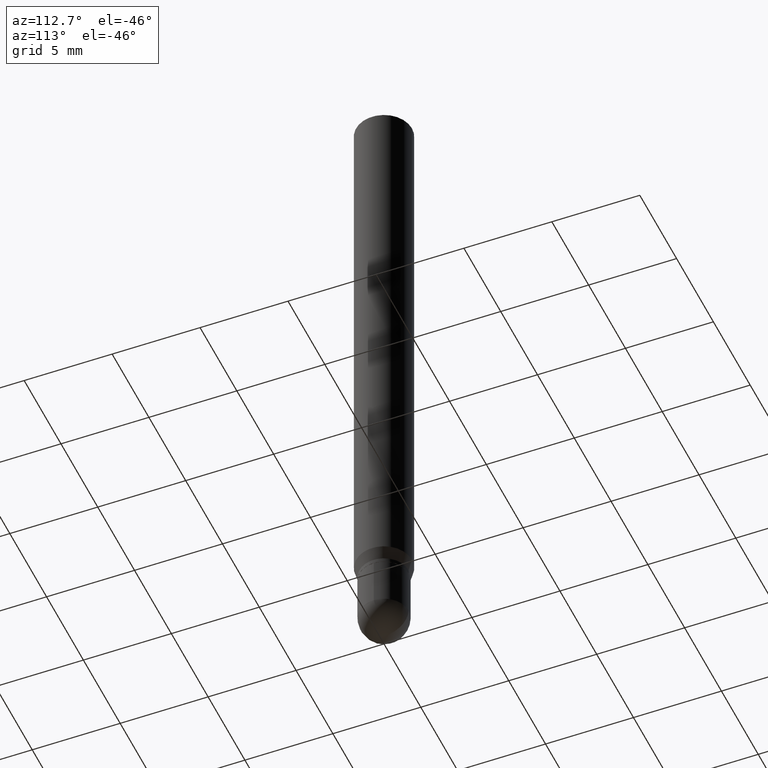
[diagram: clean part render]
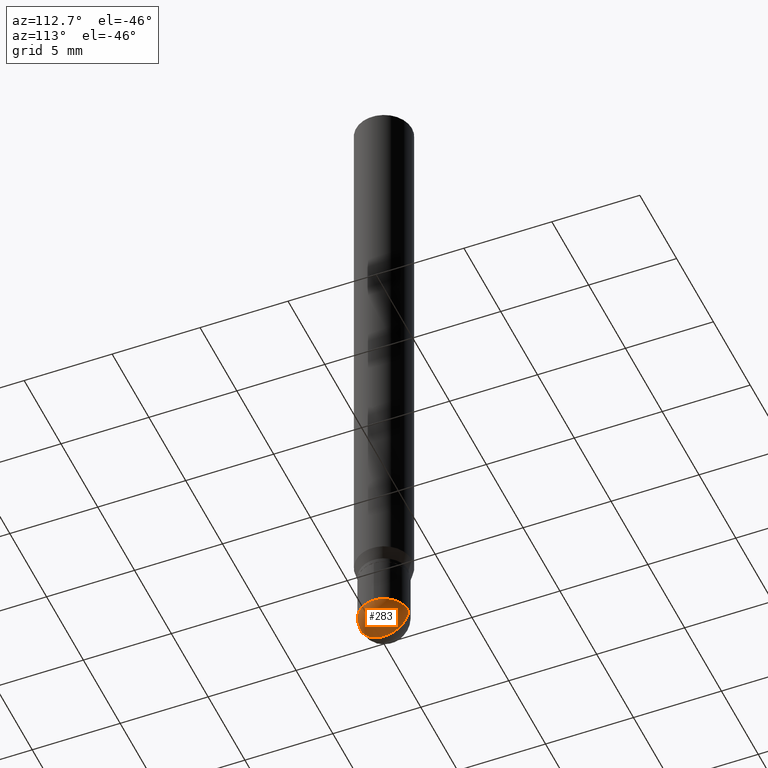
[diagram: same view with one face highlighted and labeled with its STEP entity id]
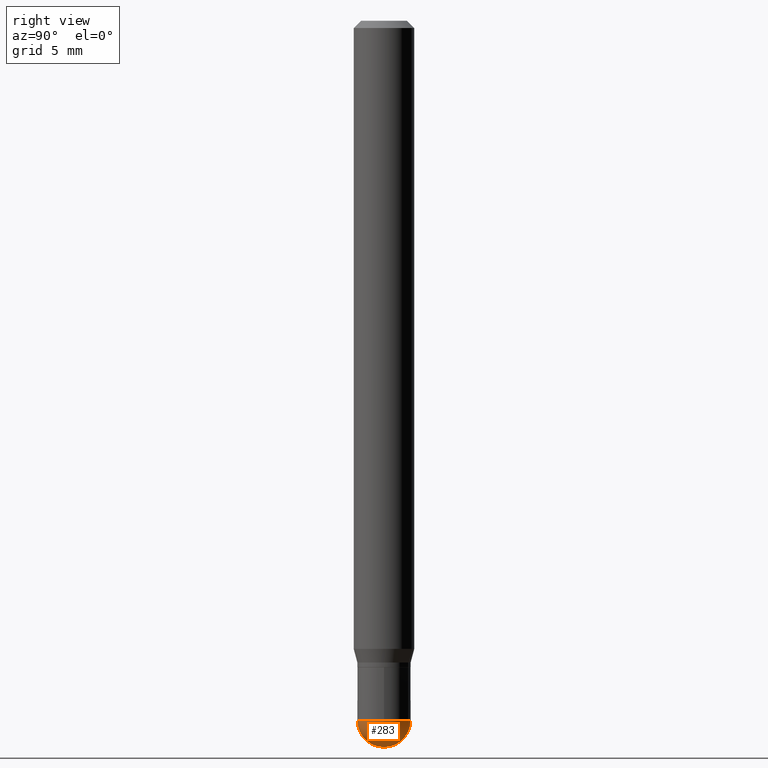
[diagram: same view with one face highlighted and labeled with its STEP entity id]
A machine part, auxiliary view. The second image highlights one B-rep face of the part: STEP entity #283.
A second angle (right view) of the same face is appended — the face is thin or edge-on in the first view.
In plain terms, the highlighted spherical surface has radius 1.397 mm.
Its self-contained STEP definition (entity closure, byte-faithful):
#9 = CARTESIAN_POINT ( 'NONE',  ( -3.840629472727099789E-16, -0.05500000000000514894, -1.444999999999999840 ) ) ;
#12 = CARTESIAN_POINT ( 'NONE',  ( 3.528999010347036160E-29, -5.051926092023656149E-15, -1.445000000000000062 ) ) ;
#26 = VERTEX_POINT ( 'NONE', #121 ) ;
#36 = AXIS2_PLACEMENT_3D ( 'NONE', #149, #349, #393 ) ;
#42 = ORIENTED_EDGE ( 'NONE', *, *, #369, .F. ) ;
#45 = CIRCLE ( 'NONE', #228, 0.05500000000000000028 ) ;
#64 = EDGE_CURVE ( 'NONE', #321, #373, #155, .T. ) ;
#74 = CARTESIAN_POINT ( 'NONE',  ( 3.661148087391975640E-29, -5.247325344357685057E-15, -1.500000000000000222 ) ) ;
#78 = CARTESIAN_POINT ( 'NONE',  ( 3.533702424937522517E-29, -5.045190534628345684E-15, -1.445000000000000062 ) ) ;
#85 = DIRECTION ( 'NONE',  ( -6.982962677686265922E-15, -1.000000000000000000, 4.966996352116824932E-15 ) ) ;
#98 = EDGE_LOOP ( 'NONE', ( #167, #331, #42, #126 ) ) ;
#117 = EDGE_CURVE ( 'NONE', #187, #26, #483, .T. ) ;
#121 = CARTESIAN_POINT ( 'NONE',  ( 3.907985046680910960E-16, 0.05499999999999503897, -1.445000000000000284 ) ) ;
#126 = ORIENTED_EDGE ( 'NONE', *, *, #64, .F. ) ;
#149 = CARTESIAN_POINT ( 'NONE',  ( 3.528999010347036160E-29, -5.051926092023656149E-15, -1.445000000000000062 ) ) ;
#155 = CIRCLE ( 'NONE', #508, 0.05500000000000000028 ) ;
#160 = CARTESIAN_POINT ( 'NONE',  ( 3.533702424937522517E-29, -5.045190534628345684E-15, -1.445000000000000062 ) ) ;
#167 = ORIENTED_EDGE ( 'NONE', *, *, #351, .F. ) ;
#187 = VERTEX_POINT ( 'NONE', #74 ) ;
#188 = CIRCLE ( 'NONE', #475, 0.05500000000000018763 ) ;
#228 = AXIS2_PLACEMENT_3D ( 'NONE', #160, #286, #474 ) ;
#248 = FACE_OUTER_BOUND ( 'NONE', #98, .T. ) ;
#283 = ADVANCED_FACE ( 'NONE', ( #248 ), #444, .T. ) ;
#286 = DIRECTION ( 'NONE',  ( -2.445468806185136597E-29, 3.491481338843145583E-15, 1.000000000000000000 ) ) ;
#316 = AXIS2_PLACEMENT_3D ( 'NONE', #12, #441, #85 ) ;
#321 = VERTEX_POINT ( 'NONE', #9 ) ;
#331 = ORIENTED_EDGE ( 'NONE', *, *, #117, .T. ) ;
#349 = DIRECTION ( 'NONE',  ( 1.000000000000000000, -7.105427357601001070E-15, 4.926315508542082329E-29 ) ) ;
#351 = EDGE_CURVE ( 'NONE', #187, #321, #188, .T. ) ;
#356 = CARTESIAN_POINT ( 'NONE',  ( 3.528999010347036160E-29, -5.051926092023656149E-15, -1.445000000000000062 ) ) ;
#357 = DIRECTION ( 'NONE',  ( -1.000000000000000000, 6.982962677686265922E-15, -4.883557194083112340E-29 ) ) ;
#367 = CARTESIAN_POINT ( 'NONE',  ( 0.05500000000000000028, -5.237222008264716599E-15, -1.445000000000000062 ) ) ;
#369 = EDGE_CURVE ( 'NONE', #373, #26, #45, .T. ) ;
#373 = VERTEX_POINT ( 'NONE', #367 ) ;
#393 = DIRECTION ( 'NONE',  ( 7.105427357601001070E-15, 1.000000000000000000, 0.000000000000000000 ) ) ;
#396 = DIRECTION ( 'NONE',  ( -2.445468806185136597E-29, 3.491481338843145583E-15, 1.000000000000000000 ) ) ;
#401 = DIRECTION ( 'NONE',  ( 1.000000000000000000, -6.982962677686262766E-15, 0.000000000000000000 ) ) ;
#405 = DIRECTION ( 'NONE',  ( -6.982962677686265922E-15, -1.000000000000000000, 0.000000000000000000 ) ) ;
#441 = DIRECTION ( 'NONE',  ( 1.000000000000000000, -6.982962677686265922E-15, 4.883557194083112901E-29 ) ) ;
#444 = SPHERICAL_SURFACE ( 'NONE', #316, 0.05500000000000018763 ) ;
#474 = DIRECTION ( 'NONE',  ( 1.000000000000000000, -6.982962677686262766E-15, 0.000000000000000000 ) ) ;
#475 = AXIS2_PLACEMENT_3D ( 'NONE', #356, #357, #405 ) ;
#483 = CIRCLE ( 'NONE', #36, 0.05500000000000018763 ) ;
#508 = AXIS2_PLACEMENT_3D ( 'NONE', #78, #396, #401 ) ;